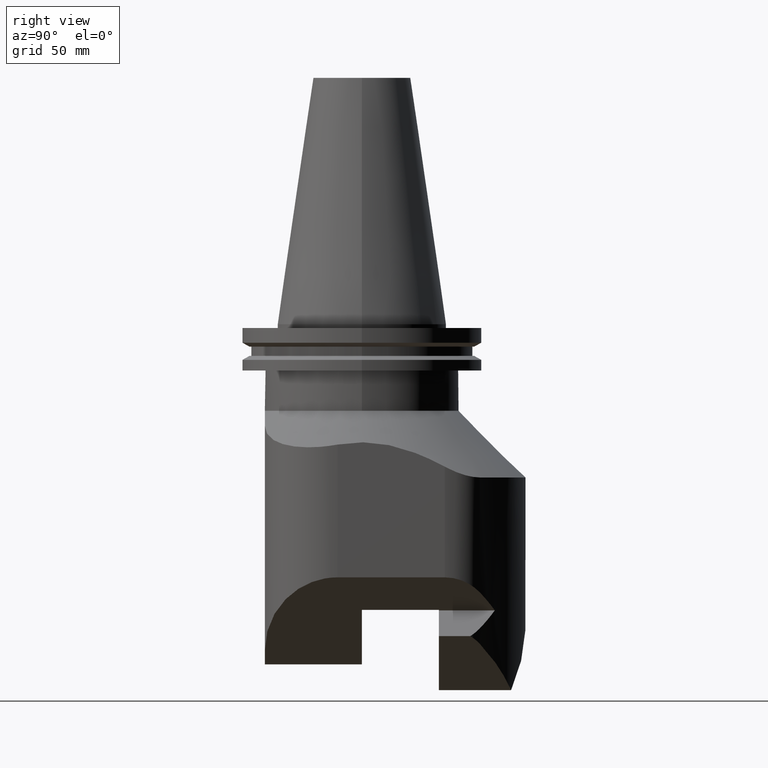
[diagram: clean part render]
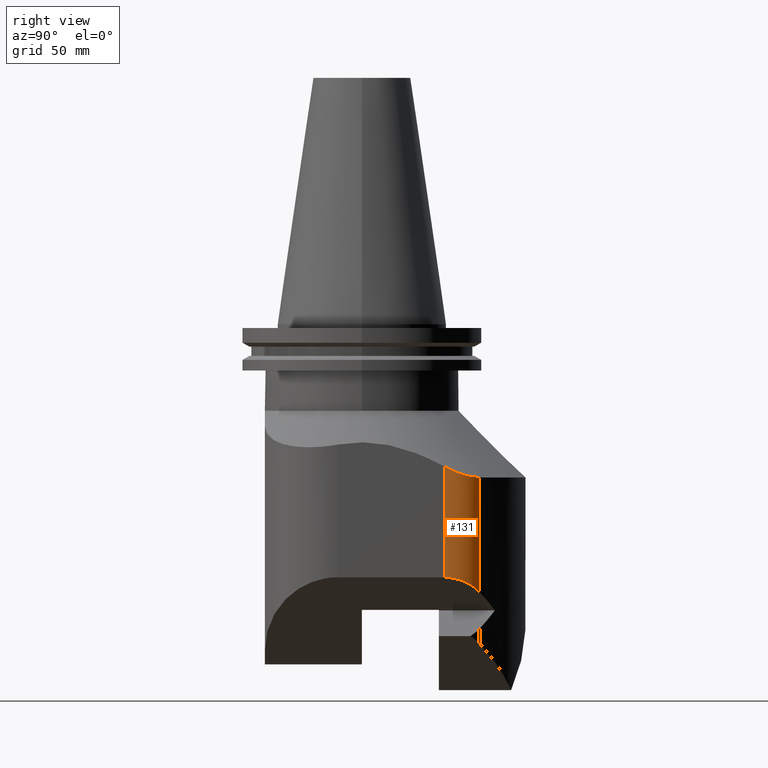
[diagram: same view with one face highlighted and labeled with its STEP entity id]
A machine part, right view. The second image highlights one B-rep face of the part: STEP entity #131.
In plain terms, the highlighted cylindrical surface (partial cylindrical patch) has radius 20 mm, axis along (-0, 0, 1).
Its self-contained STEP definition (entity closure, byte-faithful):
#131=ADVANCED_FACE('Unnamed[1]',(#362),#363,.T.);
#145=EDGE_CURVE('Unnamed[1]',#385,#386,#387,.T.);
#255=EDGE_CURVE('Unnamed[1]',#408,#516,#541,.T.);
#270=EDGE_CURVE('Unnamed[1]',#386,#516,#560,.T.);
#303=EDGE_CURVE('Unnamed[1]',#385,#408,#603,.T.);
#362=FACE_OUTER_BOUND('',#688,.T.);
#363=CYLINDRICAL_SURFACE('',#689,19.9999999999986);
#385=VERTEX_POINT('',#719);
#386=VERTEX_POINT('',#720);
#387=LINE('',#721,#722);
#408=VERTEX_POINT('',#749);
#516=VERTEX_POINT('',#922);
#541=LINE('',#958,#959);
#560=B_SPLINE_CURVE_WITH_KNOTS('',3,(#991,#992,#993,#994,#995,#996,#997,#998,#999,#1000,#1001,#1002,#1003,#1004,#1005,#1006,#1007,#1008),.UNSPECIFIED.,.F.,.F.,(4,2,2,2,2,2,2,2,4),(33.8615846986564,36.6262170531515,39.3908494076466,42.1554817621417,44.4878852802522,46.8202887983627,49.1526923164732,51.4850958345838,53.8174993526943),.UNSPECIFIED.);
#603=ELLIPSE('',#1075,28.2842712474637,19.9999999999986);
#688=EDGE_LOOP('',(#1132,#1133,#1134,#1135));
#689=AXIS2_PLACEMENT_3D('',#1136,#1137,#1138);
#719=CARTESIAN_POINT('',(52.9999999999967,34.165040611713,-104.339719282776));
#720=CARTESIAN_POINT('',(52.9999999999967,34.1650406117131,-58.7075357510096));
#721=CARTESIAN_POINT('',(52.9999999999967,34.165040611713,-292.69346914569));
#722=VECTOR('',#1158,1.0);
#749=CARTESIAN_POINT('',(46.8947368421008,48.5503208692747,-110.444982440673));
#922=CARTESIAN_POINT('',(46.8947368421025,48.5503208692755,-63.1500223208088));
#958=CARTESIAN_POINT('',(46.8947368421008,48.5503208692747,-292.69346914569));
#959=VECTOR('',#1330,1.0);
#991=CARTESIAN_POINT('',(52.9384449642205,32.5971080849063,-57.8195519211617));
#992=CARTESIAN_POINT('',(53.0047010249631,33.4396461431362,-58.3177348280299));
#993=CARTESIAN_POINT('',(53.0191582135871,34.3163819377878,-58.8011154799722));
#994=CARTESIAN_POINT('',(52.9268568681809,36.0911686805138,-59.7065598123895));
#995=CARTESIAN_POINT('',(52.8199430981926,36.9898896807149,-60.1289607609384));
#996=CARTESIAN_POINT('',(52.4861331436585,38.7585721253764,-60.8907784511055));
#997=CARTESIAN_POINT('',(52.2591309443455,39.6285171492122,-61.2301868589596));
#998=CARTESIAN_POINT('',(51.7521765976405,41.1578542925898,-61.7694148479308));
#999=CARTESIAN_POINT('',(51.4681572755128,41.8829953712902,-62.0018029062934));
#1000=CARTESIAN_POINT('',(50.7928987299387,43.3330509524495,-62.4113444953499));
#1001=CARTESIAN_POINT('',(50.4015798748152,44.0579345152886,-62.5884762706338));
#1002=CARTESIAN_POINT('',(49.5251537848692,45.4612180229533,-62.8720348693524));
#1003=CARTESIAN_POINT('',(49.0395786077385,46.1402698471498,-62.9785853848156));
#1004=CARTESIAN_POINT('',(48.0039747206371,47.4147553157153,-63.1175792893273));
#1005=CARTESIAN_POINT('',(47.453941480131,48.0101853177135,-63.1500223208086));
#1006=CARTESIAN_POINT('',(46.3355322040728,49.0904564208383,-63.1500223208086));
#1007=CARTESIAN_POINT('',(45.7213844570369,49.6195084010367,-63.1175792893273));
#1008=CARTESIAN_POINT('',(45.0665669593136,50.1148983482667,-63.0480823370714));
#1075=AXIS2_PLACEMENT_3D('',#1420,#1421,#1422);
#1132=ORIENTED_EDGE('',*,*,#303,.T.);
#1133=ORIENTED_EDGE('',*,*,#255,.T.);
#1134=ORIENTED_EDGE('',*,*,#270,.F.);
#1135=ORIENTED_EDGE('',*,*,#145,.F.);
#1136=CARTESIAN_POINT('',(32.9999999999981,34.165040611713,-292.69346914569));
#1137=DIRECTION('',(-1.22464679914735E-016,2.22044604925031E-016,1.0));
#1138=DIRECTION('',(5.66553889764798E-016,1.0,-2.22044604925031E-016));
#1158=DIRECTION('',(-1.22464679914735E-016,2.22044604925031E-016,1.0));
#1330=DIRECTION('',(-1.22464679914735E-016,2.22044604925031E-016,1.0));
#1420=CARTESIAN_POINT('',(32.999999999998,34.1650406117131,-124.33971928278));
#1421=DIRECTION('',(-0.70710678118664,4.71027737605153E-016,0.707106781186455));
#1422=DIRECTION('',(-0.707106781186455,2.43604851491854E-016,-0.70710678118664));